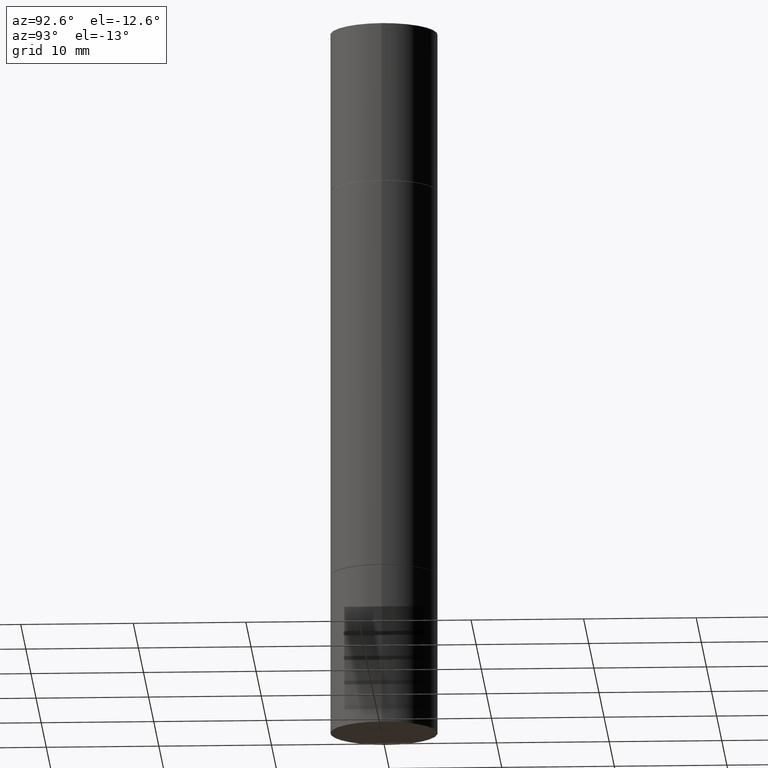
[diagram: clean part render]
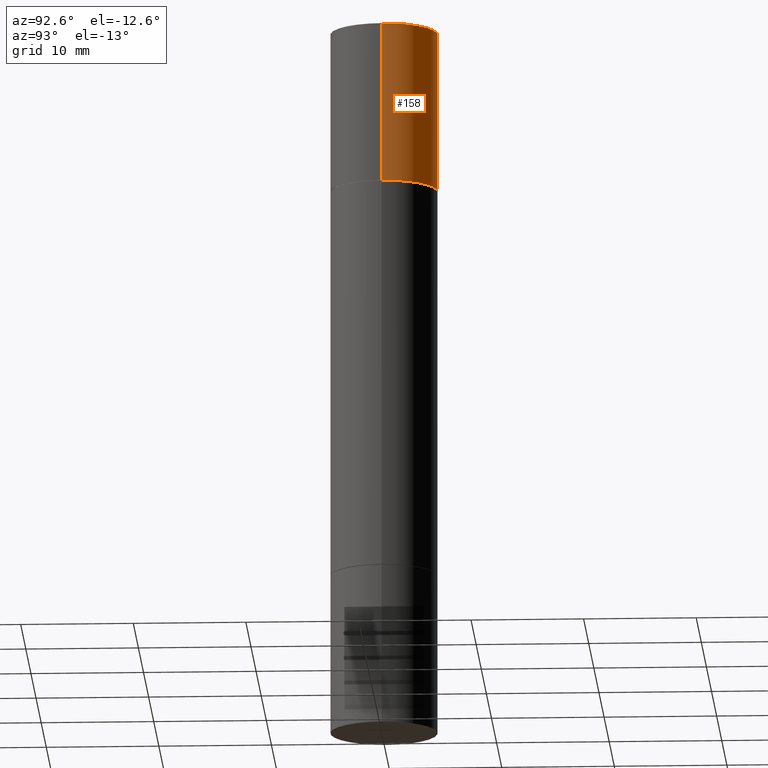
[diagram: same view with one face highlighted and labeled with its STEP entity id]
A machine part, auxiliary view. The second image highlights one B-rep face of the part: STEP entity #158.
In plain terms, the highlighted cylindrical surface (partial cylindrical patch) has radius 4.7625 mm, axis along (-0, -0, -1).
Its self-contained STEP definition (entity closure, byte-faithful):
#6 = CIRCLE ( 'NONE', #514, 0.1875000000000000278 ) ;
#16 = VERTEX_POINT ( 'NONE', #186 ) ;
#27 = CARTESIAN_POINT ( 'NONE',  ( 0.1875000000000000278, -3.270548572472500038E-15, -0.5619999999999996110 ) ) ;
#35 = CARTESIAN_POINT ( 'NONE',  ( 6.113672015462842613E-29, 1.761340885760521790E-18, 5.463695987328526437E-16 ) ) ;
#38 = DIRECTION ( 'NONE',  ( 1.000000000000000000, -6.982962677686266711E-15, 0.000000000000000000 ) ) ;
#44 = AXIS2_PLACEMENT_3D ( 'NONE', #35, #381, #276 ) ;
#49 = FACE_OUTER_BOUND ( 'NONE', #327, .T. ) ;
#64 = EDGE_CURVE ( 'NONE', #103, #114, #133, .T. ) ;
#79 = CARTESIAN_POINT ( 'NONE',  ( -0.1875000000000000278, -7.444121313411457895E-15, -2.499999999999999556 ) ) ;
#103 = VERTEX_POINT ( 'NONE', #176 ) ;
#114 = VERTEX_POINT ( 'NONE', #661 ) ;
#117 = ORIENTED_EDGE ( 'NONE', *, *, #435, .T. ) ;
#133 = LINE ( 'NONE', #79, #140 ) ;
#140 = VECTOR ( 'NONE', #495, 39.37007874015748143 ) ;
#158 = ADVANCED_FACE ( 'NONE', ( #49 ), #674, .T. ) ;
#163 = VECTOR ( 'NONE', #354, 39.37007874015748143 ) ;
#170 = EDGE_CURVE ( 'NONE', #16, #443, #202, .T. ) ;
#176 = CARTESIAN_POINT ( 'NONE',  ( -0.1875000000000000278, 3.066025098218802702E-16, 5.463695987328561936E-16 ) ) ;
#186 = CARTESIAN_POINT ( 'NONE',  ( 0.1875000000000000278, -1.307544161180414563E-15, 5.463695987328526437E-16 ) ) ;
#195 = CARTESIAN_POINT ( 'NONE',  ( 0.000000000000000000, -8.730464687993621641E-15, -2.499999999999999556 ) ) ;
#202 = LINE ( 'NONE', #252, #163 ) ;
#252 = CARTESIAN_POINT ( 'NONE',  ( 0.1875000000000000278, -1.003977019005979665E-14, -2.499999999999999556 ) ) ;
#272 = AXIS2_PLACEMENT_3D ( 'NONE', #195, #299, #518 ) ;
#276 = DIRECTION ( 'NONE',  ( 1.000000000000000000, -6.982962677686265922E-15, 0.000000000000000000 ) ) ;
#299 = DIRECTION ( 'NONE',  ( -2.445468806185136597E-29, -3.492890411551752677E-15, -1.000000000000000000 ) ) ;
#324 = ORIENTED_EDGE ( 'NONE', *, *, #64, .F. ) ;
#327 = EDGE_LOOP ( 'NONE', ( #324, #490, #380, #117 ) ) ;
#329 = CIRCLE ( 'NONE', #44, 0.1875000000000000278 ) ;
#334 = CARTESIAN_POINT ( 'NONE',  ( 4.739318546386794397E-29, -1.961243070406324635E-15, -0.5619999999999996110 ) ) ;
#354 = DIRECTION ( 'NONE',  ( -2.445468806185136877E-29, -3.492890411551753071E-15, -1.000000000000000000 ) ) ;
#379 = DIRECTION ( 'NONE',  ( 2.445468806185136597E-29, 3.492890411551752677E-15, 1.000000000000000000 ) ) ;
#380 = ORIENTED_EDGE ( 'NONE', *, *, #170, .T. ) ;
#381 = DIRECTION ( 'NONE',  ( 2.445468806185136597E-29, 3.492890411551752677E-15, 1.000000000000000000 ) ) ;
#435 = EDGE_CURVE ( 'NONE', #443, #114, #6, .T. ) ;
#443 = VERTEX_POINT ( 'NONE', #27 ) ;
#490 = ORIENTED_EDGE ( 'NONE', *, *, #526, .F. ) ;
#495 = DIRECTION ( 'NONE',  ( -2.445468806185136877E-29, -3.492890411551753071E-15, -1.000000000000000000 ) ) ;
#514 = AXIS2_PLACEMENT_3D ( 'NONE', #334, #379, #38 ) ;
#518 = DIRECTION ( 'NONE',  ( 1.000000000000000000, -6.982962677686266711E-15, 0.000000000000000000 ) ) ;
#526 = EDGE_CURVE ( 'NONE', #16, #103, #329, .T. ) ;
#661 = CARTESIAN_POINT ( 'NONE',  ( -0.1875000000000000278, 3.066025098218802702E-16, -0.5619999999999996110 ) ) ;
#674 = CYLINDRICAL_SURFACE ( 'NONE', #272, 0.1875000000000000278 ) ;